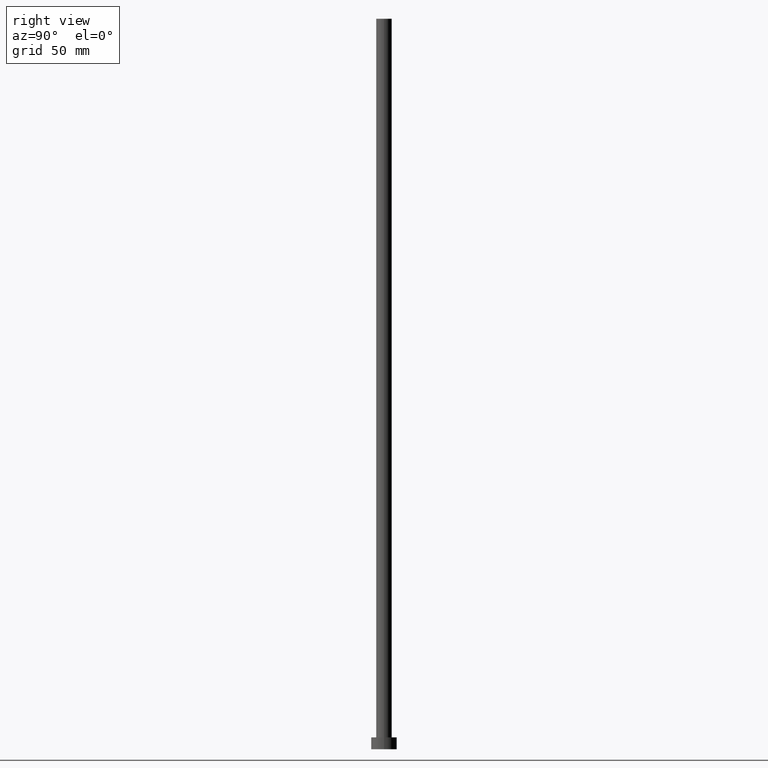
[diagram: clean part render]
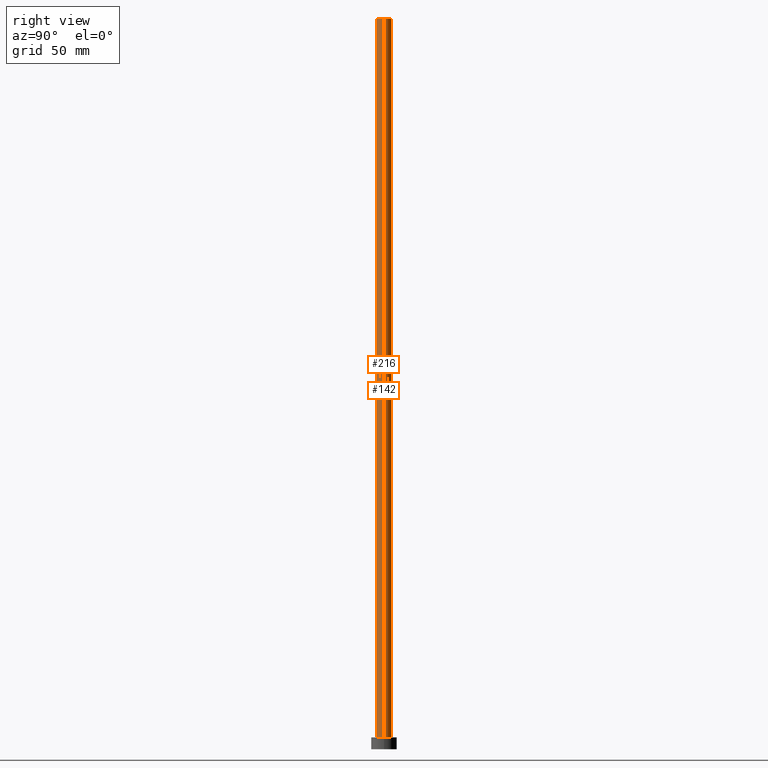
[diagram: same view with one multi-face feature highlighted, each face labeled with its STEP entity id]
A machine part, right view. The highlighted faces form ONE feature: a constant-radius fillet chain: 2 tangent blend faces with common blend radius 4.25 mm. The faces share edges in the B-rep.
Their STEP definitions:
[1] entity #216 (Cylinder):
#1 = VERTEX_POINT ( 'NONE', #17 ) ;
#4 = FACE_OUTER_BOUND ( 'NONE', #40, .T. ) ;
#6 = VERTEX_POINT ( 'NONE', #106 ) ;
#8 = CARTESIAN_POINT ( 'NONE',  ( 4.250000000000000000, 5.204748896376250699E-16, 400.0000000000000000 ) ) ;
#17 = CARTESIAN_POINT ( 'NONE',  ( 4.250000000000000000, 5.204748896376250699E-16, 400.0000000000000000 ) ) ;
#28 = CARTESIAN_POINT ( 'NONE',  ( 4.250000000000000000, 5.204748896376250699E-16, 6.500000000000000000 ) ) ;
#29 = LINE ( 'NONE', #8, #232 ) ;
#31 = AXIS2_PLACEMENT_3D ( 'NONE', #93, #50, #103 ) ;
#40 = EDGE_LOOP ( 'NONE', ( #247, #138, #212, #59 ) ) ;
#44 = EDGE_CURVE ( 'NONE', #1, #115, #29, .T. ) ;
#48 = DIRECTION ( 'NONE',  ( -0.000000000000000000, -0.000000000000000000, -1.000000000000000000 ) ) ;
#50 = DIRECTION ( 'NONE',  ( -0.000000000000000000, -0.000000000000000000, -1.000000000000000000 ) ) ;
#59 = ORIENTED_EDGE ( 'NONE', *, *, #131, .T. ) ;
#64 = LINE ( 'NONE', #146, #194 ) ;
#70 = DIRECTION ( 'NONE',  ( -0.000000000000000000, -0.000000000000000000, -1.000000000000000000 ) ) ;
#71 = CARTESIAN_POINT ( 'NONE',  ( 0.000000000000000000, 0.000000000000000000, 400.0000000000000000 ) ) ;
#90 = CARTESIAN_POINT ( 'NONE',  ( 0.000000000000000000, 0.000000000000000000, 6.500000000000000000 ) ) ;
#93 = CARTESIAN_POINT ( 'NONE',  ( 0.000000000000000000, 0.000000000000000000, 400.0000000000000000 ) ) ;
#103 = DIRECTION ( 'NONE',  ( -1.000000000000000000, 0.000000000000000000, 0.000000000000000000 ) ) ;
#106 = CARTESIAN_POINT ( 'NONE',  ( -4.250000000000000000, 0.000000000000000000, 6.500000000000000000 ) ) ;
#115 = VERTEX_POINT ( 'NONE', #28 ) ;
#120 = EDGE_CURVE ( 'NONE', #224, #1, #242, .T. ) ;
#131 = EDGE_CURVE ( 'NONE', #6, #115, #215, .T. ) ;
#136 = AXIS2_PLACEMENT_3D ( 'NONE', #71, #153, #226 ) ;
#138 = ORIENTED_EDGE ( 'NONE', *, *, #120, .F. ) ;
#146 = CARTESIAN_POINT ( 'NONE',  ( -4.250000000000000000, 0.000000000000000000, 400.0000000000000000 ) ) ;
#151 = CYLINDRICAL_SURFACE ( 'NONE', #31, 4.250000000000000000 ) ;
#153 = DIRECTION ( 'NONE',  ( 0.000000000000000000, 0.000000000000000000, 1.000000000000000000 ) ) ;
#162 = AXIS2_PLACEMENT_3D ( 'NONE', #90, #190, #168 ) ;
#168 = DIRECTION ( 'NONE',  ( 1.000000000000000000, 0.000000000000000000, 0.000000000000000000 ) ) ;
#174 = CARTESIAN_POINT ( 'NONE',  ( -4.250000000000000000, 0.000000000000000000, 400.0000000000000000 ) ) ;
#190 = DIRECTION ( 'NONE',  ( 0.000000000000000000, 0.000000000000000000, 1.000000000000000000 ) ) ;
#194 = VECTOR ( 'NONE', #70, 1000.000000000000000 ) ;
#198 = EDGE_CURVE ( 'NONE', #224, #6, #64, .T. ) ;
#212 = ORIENTED_EDGE ( 'NONE', *, *, #198, .T. ) ;
#215 = CIRCLE ( 'NONE', #162, 4.250000000000000000 ) ;
#216 = ADVANCED_FACE ( 'NONE', ( #4 ), #151, .T. ) ;
#224 = VERTEX_POINT ( 'NONE', #174 ) ;
#226 = DIRECTION ( 'NONE',  ( 1.000000000000000000, 0.000000000000000000, 0.000000000000000000 ) ) ;
#232 = VECTOR ( 'NONE', #48, 1000.000000000000000 ) ;
#242 = CIRCLE ( 'NONE', #136, 4.250000000000000000 ) ;
#247 = ORIENTED_EDGE ( 'NONE', *, *, #44, .F. ) ;
[2] entity #142 (Cylinder):
#1 = VERTEX_POINT ( 'NONE', #17 ) ;
#6 = VERTEX_POINT ( 'NONE', #106 ) ;
#8 = CARTESIAN_POINT ( 'NONE',  ( 4.250000000000000000, 5.204748896376250699E-16, 400.0000000000000000 ) ) ;
#16 = EDGE_CURVE ( 'NONE', #115, #6, #179, .T. ) ;
#17 = CARTESIAN_POINT ( 'NONE',  ( 4.250000000000000000, 5.204748896376250699E-16, 400.0000000000000000 ) ) ;
#28 = CARTESIAN_POINT ( 'NONE',  ( 4.250000000000000000, 5.204748896376250699E-16, 6.500000000000000000 ) ) ;
#29 = LINE ( 'NONE', #8, #232 ) ;
#38 = AXIS2_PLACEMENT_3D ( 'NONE', #227, #42, #154 ) ;
#42 = DIRECTION ( 'NONE',  ( -0.000000000000000000, -0.000000000000000000, -1.000000000000000000 ) ) ;
#44 = EDGE_CURVE ( 'NONE', #1, #115, #29, .T. ) ;
#48 = DIRECTION ( 'NONE',  ( -0.000000000000000000, -0.000000000000000000, -1.000000000000000000 ) ) ;
#62 = EDGE_LOOP ( 'NONE', ( #88, #164, #167, #68 ) ) ;
#63 = AXIS2_PLACEMENT_3D ( 'NONE', #246, #206, #191 ) ;
#64 = LINE ( 'NONE', #146, #194 ) ;
#68 = ORIENTED_EDGE ( 'NONE', *, *, #198, .F. ) ;
#70 = DIRECTION ( 'NONE',  ( -0.000000000000000000, -0.000000000000000000, -1.000000000000000000 ) ) ;
#72 = FACE_OUTER_BOUND ( 'NONE', #62, .T. ) ;
#86 = DIRECTION ( 'NONE',  ( 1.000000000000000000, 0.000000000000000000, 0.000000000000000000 ) ) ;
#88 = ORIENTED_EDGE ( 'NONE', *, *, #237, .F. ) ;
#106 = CARTESIAN_POINT ( 'NONE',  ( -4.250000000000000000, 0.000000000000000000, 6.500000000000000000 ) ) ;
#115 = VERTEX_POINT ( 'NONE', #28 ) ;
#142 = ADVANCED_FACE ( 'NONE', ( #72 ), #148, .T. ) ;
#146 = CARTESIAN_POINT ( 'NONE',  ( -4.250000000000000000, 0.000000000000000000, 400.0000000000000000 ) ) ;
#148 = CYLINDRICAL_SURFACE ( 'NONE', #38, 4.250000000000000000 ) ;
#154 = DIRECTION ( 'NONE',  ( -1.000000000000000000, 0.000000000000000000, 0.000000000000000000 ) ) ;
#163 = CIRCLE ( 'NONE', #253, 4.250000000000000000 ) ;
#164 = ORIENTED_EDGE ( 'NONE', *, *, #44, .T. ) ;
#167 = ORIENTED_EDGE ( 'NONE', *, *, #16, .T. ) ;
#174 = CARTESIAN_POINT ( 'NONE',  ( -4.250000000000000000, 0.000000000000000000, 400.0000000000000000 ) ) ;
#176 = CARTESIAN_POINT ( 'NONE',  ( 0.000000000000000000, 0.000000000000000000, 400.0000000000000000 ) ) ;
#179 = CIRCLE ( 'NONE', #63, 4.250000000000000000 ) ;
#182 = DIRECTION ( 'NONE',  ( 0.000000000000000000, 0.000000000000000000, 1.000000000000000000 ) ) ;
#191 = DIRECTION ( 'NONE',  ( 1.000000000000000000, 0.000000000000000000, 0.000000000000000000 ) ) ;
#194 = VECTOR ( 'NONE', #70, 1000.000000000000000 ) ;
#198 = EDGE_CURVE ( 'NONE', #224, #6, #64, .T. ) ;
#206 = DIRECTION ( 'NONE',  ( 0.000000000000000000, 0.000000000000000000, 1.000000000000000000 ) ) ;
#224 = VERTEX_POINT ( 'NONE', #174 ) ;
#227 = CARTESIAN_POINT ( 'NONE',  ( 0.000000000000000000, 0.000000000000000000, 400.0000000000000000 ) ) ;
#232 = VECTOR ( 'NONE', #48, 1000.000000000000000 ) ;
#237 = EDGE_CURVE ( 'NONE', #1, #224, #163, .T. ) ;
#246 = CARTESIAN_POINT ( 'NONE',  ( 0.000000000000000000, 0.000000000000000000, 6.500000000000000000 ) ) ;
#253 = AXIS2_PLACEMENT_3D ( 'NONE', #176, #182, #86 ) ;